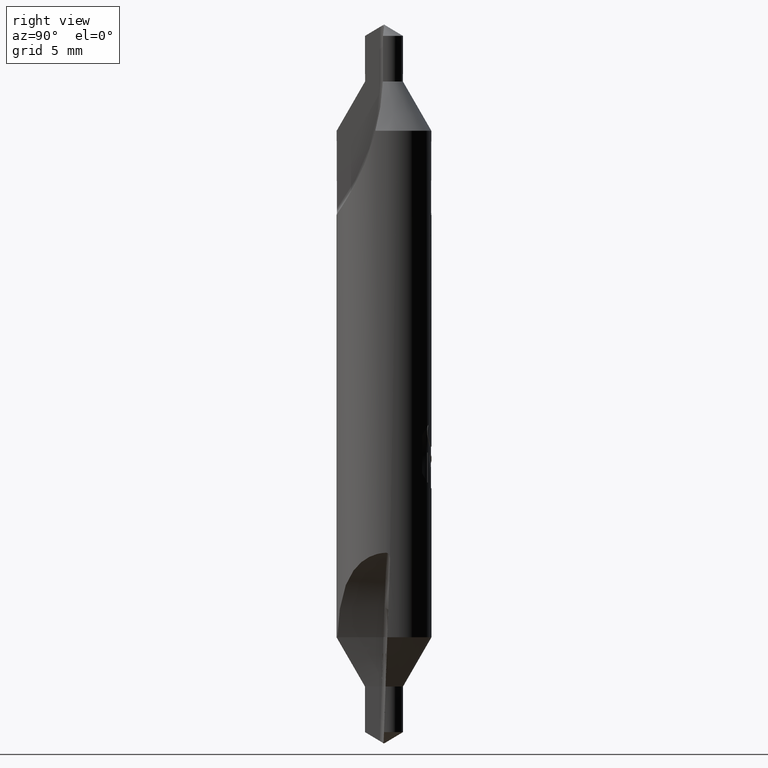
[diagram: clean part render]
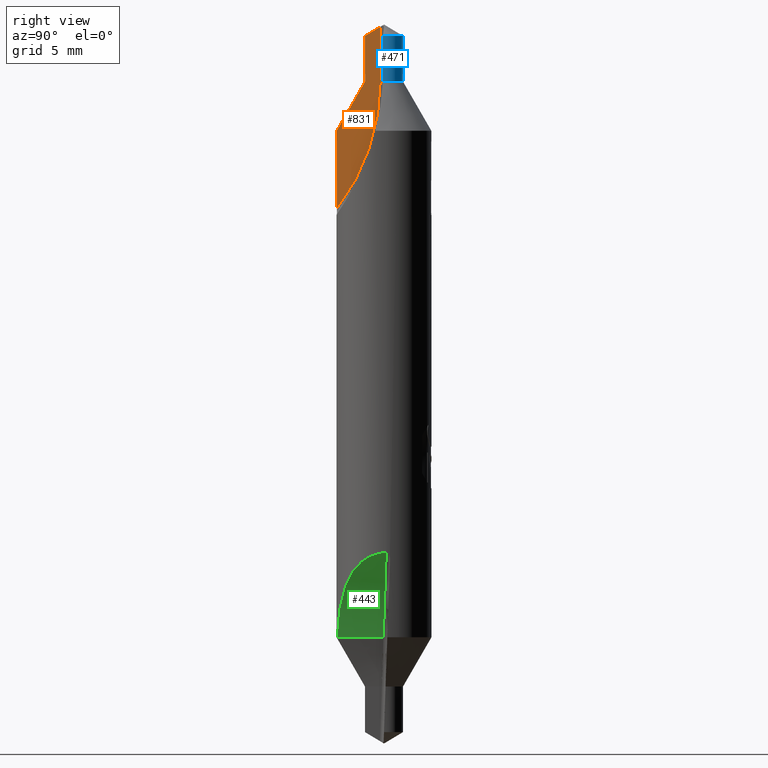
[diagram: same view with three faces highlighted in distinct colors, each labeled with its STEP entity id]
A machine part, right view with three faces highlighted in distinct colors.
Their STEP definitions:

[orange] entity #831 — the highlighted planar face has unit normal (-0.9994, 0, 0.0349).
#449=EDGE_CURVE('',#1061,#845,#1202,.T.);
#651=EDGE_CURVE('',#867,#845,#1425,.T.);
#659=EDGE_CURVE('',#867,#1121,#1433,.T.);
#669=EDGE_CURVE('',#1011,#1061,#1443,.T.);
#687=EDGE_CURVE('',#1107,#1011,#1462,.T.);
#735=EDGE_CURVE('',#1121,#1107,#1514,.T.);
#831=ADVANCED_FACE('',(#1619),#1620,.F.);
#845=VERTEX_POINT('',#1635);
#867=VERTEX_POINT('',#1660);
#1011=VERTEX_POINT('',#1816);
#1061=VERTEX_POINT('',#1871);
#1107=VERTEX_POINT('',#1921);
#1121=VERTEX_POINT('',#1935);
#1202=(B_SPLINE_CURVE(2,(#2066,#2067,#2068,#2069,#2070,#2071,#2072,#2073,#2074,#2075,#2076),.UNSPECIFIED.,.F.,.F.)B_SPLINE_CURVE_WITH_KNOTS((3,1,1,1,1,1,1,1,1,3),(0.0,0.0174878699001051,0.0443849076843532,0.122888182478185,0.355189575203595,0.904908470016395,1.43707627342332,1.71101925978727,1.8186462032572,1.85680597519199),.UNSPECIFIED.)RATIONAL_B_SPLINE_CURVE((1.0,1.4394437444751,2.53376056383047,5.05568976123685,11.8319628929197,23.9648514120051,24.652835124408,13.5543550155183,5.47172202280765,1.95889740506587,1.0))BOUNDED_CURVE()REPRESENTATION_ITEM('')GEOMETRIC_REPRESENTATION_ITEM()CURVE());
#1425=LINE('',#2700,#2701);
#1433=CIRCLE('',#2731,8.79692194);
#1443=ELLIPSE('',#2755,22.9229666782752,0.8);
#1462=(B_SPLINE_CURVE(2,(#2796,#2797,#2798),.UNSPECIFIED.,.F.,.F.)B_SPLINE_CURVE_WITH_KNOTS((3,3),(0.0,2.40006550699986),.UNSPECIFIED.)RATIONAL_B_SPLINE_CURVE((1.0,1.1070260432372,1.0))BOUNDED_CURVE()REPRESENTATION_ITEM('')GEOMETRIC_REPRESENTATION_ITEM()CURVE());
#1514=ELLIPSE('',#2992,57.3074166956881,2.0);
#1619=FACE_OUTER_BOUND('',#3243,.T.);
#1620=PLANE('',#3244);
#1635=CARTESIAN_POINT('',(0.0134170267688776,-0.16,-0.0964751249774476));
#1660=CARTESIAN_POINT('',(-0.0669830053653219,-0.16,-2.39883080912696));
#1816=CARTESIAN_POINT('',(-0.0670238344743604,-0.797187434429541,-2.40000000183469));
#1871=CARTESIAN_POINT('',(-3.60822483003176E-016,-0.8,-0.480688501834695));
#1921=CARTESIAN_POINT('',(-0.139605290905324,-1.9951216410914,-4.4784609718347));
#1935=CARTESIAN_POINT('',(-0.254147216168673,-1.98378657937635,-7.75851255518874));
#2066=CARTESIAN_POINT('',(-3.60822483003176E-016,-0.8,-0.480688501834695));
#2067=CARTESIAN_POINT('',(0.00523438519587872,-0.550535858046051,-0.330795321585157));
#2068=CARTESIAN_POINT('',(0.0103788463742728,-0.30521521511412,-0.183477228276537));
#2069=CARTESIAN_POINT('',(0.013754392061618,-0.143982495128848,-0.0868142470056642));
#2070=CARTESIAN_POINT('',(0.0156966673156799,-0.0502048099169644,-0.0311947608852086));
#2071=CARTESIAN_POINT('',(0.0164303187258985,-0.0107277966043857,-0.0101857332808212));
#2072=CARTESIAN_POINT('',(0.016450284843921,0.00847926831940585,-0.00961397846805053));
#2073=CARTESIAN_POINT('',(0.0158808095736354,0.041045754630396,-0.025921616546307));
#2074=CARTESIAN_POINT('',(0.0140122494957368,0.131722177009908,-0.0794301762113569));
#2075=CARTESIAN_POINT('',(0.00839300615291653,0.400000000000001,-0.240344251834696));
#2076=CARTESIAN_POINT('',(-3.60822483003176E-016,0.8,-0.480688501834695));
#2700=CARTESIAN_POINT('',(-0.0669830053653219,-0.16,-2.39883080912696));
#2701=VECTOR('',#4378,1.0);
#2731=AXIS2_PLACEMENT_3D('',#4382,#4383,#4384);
#2755=AXIS2_PLACEMENT_3D('',#4388,#4389,#4390);
#2796=CARTESIAN_POINT('',(-0.139605290905324,-1.9951216410914,-4.4784609718347));
#2797=CARTESIAN_POINT('',(-0.0877454041986311,-1.1392467560555,-2.99338812087851));
#2798=CARTESIAN_POINT('',(-0.0670238344743604,-0.797187434429541,-2.4000000018347));
#2992=AXIS2_PLACEMENT_3D('',#4444,#4445,#4446);
#3243=EDGE_LOOP('',(#4559,#4560,#4561,#4562,#4563,#4564));
#3244=AXIS2_PLACEMENT_3D('',#4565,#4566,#4567);
#4378=DIRECTION('',(0.0348994967025007,0.0,0.999390827019096));
#4382=CARTESIAN_POINT('',(-0.0669830053653229,-8.95692194,-2.39883080912696));
#4383=DIRECTION('',(-0.999390827019096,0.0,0.0348994967025007));
#4384=DIRECTION('',(0.0348994967025007,0.0,0.999390827019096));
#4388=CARTESIAN_POINT('',(0.0,0.0,-0.480688501834685));
#4389=DIRECTION('',(-0.999390827019096,0.0,0.0348994967025007));
#4390=DIRECTION('',(0.0348994967025007,-0.0,0.999390827019096));
#4444=CARTESIAN_POINT('',(0.0,0.0,-0.480688501834685));
#4445=DIRECTION('',(-0.999390827019096,0.0,0.0348994967025007));
#4446=DIRECTION('',(0.0348994967025007,-0.0,0.999390827019096));
#4559=ORIENTED_EDGE('',*,*,#735,.F.);
#4560=ORIENTED_EDGE('',*,*,#659,.F.);
#4561=ORIENTED_EDGE('',*,*,#651,.T.);
#4562=ORIENTED_EDGE('',*,*,#449,.F.);
#4563=ORIENTED_EDGE('',*,*,#669,.F.);
#4564=ORIENTED_EDGE('',*,*,#687,.F.);
#4565=CARTESIAN_POINT('',(0.0865210687532709,-8.95692194,1.99695073729256));
#4566=DIRECTION('',(-0.999390827019096,0.0,0.0348994967025007));
#4567=DIRECTION('',(0.0348994967025007,0.0,0.999390827019096));

[blue] entity #471 — the highlighted cylindrical surface (edge-blend (fillet) strip) has radius 0.8 mm, axis along (-0, -0, 1).
#471=ADVANCED_FACE('',(#1228),#1229,.T.);
#473=VERTEX_POINT('',#1231);
#565=VERTEX_POINT('',#1333);
#727=VERTEX_POINT('',#1505);
#805=EDGE_CURVE('',#473,#815,#1592,.T.);
#815=VERTEX_POINT('',#1603);
#849=EDGE_CURVE('',#565,#727,#1640,.T.);
#889=EDGE_CURVE('',#815,#727,#1685,.T.);
#1031=EDGE_CURVE('',#565,#473,#1839,.T.);
#1228=FACE_OUTER_BOUND('',#2146,.T.);
#1229=CYLINDRICAL_SURFACE('',#2147,0.8);
#1231=CARTESIAN_POINT('',(0.0,0.8,-0.480688501834695));
#1333=CARTESIAN_POINT('',(0.0670238344743623,0.797187434429541,-2.40000000183469));
#1505=CARTESIAN_POINT('',(0.798503622795996,-0.0489077129057376,-2.40000000183469));
#1592=CIRCLE('',#3202,0.8);
#1603=CARTESIAN_POINT('',(0.798775671363862,-0.0442428167865947,-0.480688501834695));
#1640=CIRCLE('',#3278,0.8);
#1685=(B_SPLINE_CURVE(2,(#3409,#3410,#3411),.UNSPECIFIED.,.F.,.F.)B_SPLINE_CURVE_WITH_KNOTS((3,3),(0.0,1.91931718831074),.UNSPECIFIED.)RATIONAL_B_SPLINE_CURVE((1.0,0.999995735362218,1.0))BOUNDED_CURVE()REPRESENTATION_ITEM('')GEOMETRIC_REPRESENTATION_ITEM()CURVE());
#1839=ELLIPSE('',#3747,22.9229666782752,0.8);
#2146=EDGE_LOOP('',(#4150,#4151,#4152,#4153));
#2147=AXIS2_PLACEMENT_3D('',#4154,#4155,#4156);
#3202=AXIS2_PLACEMENT_3D('',#4536,#4537,#4538);
#3278=AXIS2_PLACEMENT_3D('',#4593,#4594,#4595);
#3409=CARTESIAN_POINT('',(0.798775671363862,-0.0442428167865947,-0.480688501834695));
#3410=CARTESIAN_POINT('',(0.798646458974345,-0.0465756635042027,-1.44031254165637));
#3411=CARTESIAN_POINT('',(0.798503622795996,-0.0489077129057376,-2.40000000183469));
#3747=AXIS2_PLACEMENT_3D('',#4832,#4833,#4834);
#4150=ORIENTED_EDGE('',*,*,#889,.T.);
#4151=ORIENTED_EDGE('',*,*,#849,.F.);
#4152=ORIENTED_EDGE('',*,*,#1031,.T.);
#4153=ORIENTED_EDGE('',*,*,#805,.T.);
#4154=CARTESIAN_POINT('',(0.0,0.0,-1.44034425183469));
#4155=DIRECTION('',(-0.0,-0.0,1.0));
#4156=DIRECTION('',(0.0,1.0,0.0));
#4536=CARTESIAN_POINT('',(0.0,0.0,-0.480688501834695));
#4537=DIRECTION('',(0.0,0.0,-1.0));
#4538=DIRECTION('',(0.0,1.0,0.0));
#4593=CARTESIAN_POINT('',(0.0,0.0,-2.40000000183469));
#4594=DIRECTION('',(0.0,0.0,-1.0));
#4595=DIRECTION('',(0.0,1.0,0.0));
#4832=CARTESIAN_POINT('',(0.0,0.0,-0.48068850183463));
#4833=DIRECTION('',(0.999390827019096,0.0,0.0348994967025007));
#4834=DIRECTION('',(0.0348994967025007,0.0,-0.999390827019096));

[green] entity #443 — the highlighted conical surface has half-angle 4 deg.
#443=ADVANCED_FACE('',(#1195),#1196,.F.);
#919=EDGE_CURVE('',#1049,#1111,#1716,.T.);
#933=EDGE_CURVE('',#1059,#1049,#1732,.T.);
#939=EDGE_CURVE('',#1059,#1111,#1739,.T.);
#1049=VERTEX_POINT('',#1857);
#1059=VERTEX_POINT('',#1869);
#1111=VERTEX_POINT('',#1925);
#1195=FACE_OUTER_BOUND('',#2047,.T.);
#1196=CONICAL_SURFACE('',#2048,8.64935206272734,0.0698131700797732);
#1716=B_SPLINE_CURVE_WITH_KNOTS('',3,(#3510,#3511,#3512,#3513,#3514,#3515,#3516,#3517,#3518,#3519,#3520,#3521,#3522,#3523,#3524,#3525,#3526,#3527,#3528,#3529,#3530,#3531,#3532,#3533),.UNSPECIFIED.,.F.,.F.,(4,2,2,2,2,2,2,2,2,2,2,4),(9.30180473098247,10.1708844544966,11.0399641780108,11.6940415872628,12.3481189965147,12.6685788564057,12.9890387162966,13.275393114549,13.5617475128013,13.8481019110537,14.134456309306,14.4223159109278),.UNSPECIFIED.);
#1732=(B_SPLINE_CURVE(2,(#3571,#3572,#3573),.UNSPECIFIED.,.F.,.F.)B_SPLINE_CURVE_WITH_KNOTS((3,3),(0.0,2.21296189911165),.UNSPECIFIED.)RATIONAL_B_SPLINE_CURVE((1.0,1.00002981726071,1.0))BOUNDED_CURVE()REPRESENTATION_ITEM('')GEOMETRIC_REPRESENTATION_ITEM()CURVE());
#1739=CIRCLE('',#3587,8.95653218794182);
#1857=CARTESIAN_POINT('',(0.367014517809569,-1.96603670965651,-25.8215390347779));
#1869=CARTESIAN_POINT('',(0.244047967375367,-0.0316600751203061,-25.8215390347779));
#1925=CARTESIAN_POINT('',(1.9978504666747,0.0927012017595372,-22.2602980114599));
#2047=EDGE_LOOP('',(#4108,#4109,#4110));
#2048=AXIS2_PLACEMENT_3D('',#4111,#4112,#4113);
#3510=CARTESIAN_POINT('',(0.322248986833603,-1.97386817961198,-26.0238932085949));
#3511=CARTESIAN_POINT('',(0.386637150342106,-1.96335641364115,-25.7161203701461));
#3512=CARTESIAN_POINT('',(0.467288533138022,-1.94707092815768,-25.4122198444315));
#3513=CARTESIAN_POINT('',(0.65385617138174,-1.89259501454194,-24.8279808630606));
#3514=CARTESIAN_POINT('',(0.759750910720949,-1.85426242163428,-24.547648801235));
#3515=CARTESIAN_POINT('',(0.956193167883763,-1.75911345147841,-24.0892431501151));
#3516=CARTESIAN_POINT('',(1.05521396676653,-1.7037211909737,-23.8782064824002));
#3517=CARTESIAN_POINT('',(1.26232484328689,-1.55649565210555,-23.4753392418452));
#3518=CARTESIAN_POINT('',(1.37016627325817,-1.46399466817588,-23.2836251738446));
#3519=CARTESIAN_POINT('',(1.51555635103273,-1.30692099018019,-23.0392599750041));
#3520=CARTESIAN_POINT('',(1.56763565648275,-1.2449150901556,-22.9542631975507));
#3521=CARTESIAN_POINT('',(1.66806470450702,-1.10673181656546,-22.7944925507627));
#3522=CARTESIAN_POINT('',(1.7163015336783,-1.03040807959619,-22.7197743518944));
#3523=CARTESIAN_POINT('',(1.79422076636279,-0.886964434481924,-22.6003329815379));
#3524=CARTESIAN_POINT('',(1.83008395575304,-0.811488594806469,-22.5459893534975));
#3525=CARTESIAN_POINT('',(1.89420012336617,-0.647863349728903,-22.4484296845118));
#3526=CARTESIAN_POINT('',(1.92242310034594,-0.559699259275756,-22.4052185591769));
#3527=CARTESIAN_POINT('',(1.96671927070333,-0.375486079425089,-22.3346629752158));
#3528=CARTESIAN_POINT('',(1.98281030928744,-0.279247722889503,-22.3072513760985));
#3529=CARTESIAN_POINT('',(2.00057445543816,-0.0849580103877959,-22.2703904060693));
#3530=CARTESIAN_POINT('',(2.00223343848672,0.0130954283047075,-22.2609452075279));
#3531=CARTESIAN_POINT('',(1.9918594778997,0.204210869322813,-22.2592086730744));
#3532=CARTESIAN_POINT('',(1.97948603881439,0.302148523569141,-22.2669656156057));
#3533=CARTESIAN_POINT('',(1.95990611336734,0.398457057642753,-22.2838835060865));
#3571=CARTESIAN_POINT('',(0.228792138237711,0.208504701810544,-25.8215390318347));
#3572=CARTESIAN_POINT('',(0.299499856802049,-0.904700015280051,-25.8215390318347));
#3573=CARTESIAN_POINT('',(0.369174994127071,-2.0,-25.8215390318347));
#3587=AXIS2_PLACEMENT_3D('',#4700,#4701,#4702);
#4108=ORIENTED_EDGE('',*,*,#919,.F.);
#4109=ORIENTED_EDGE('',*,*,#933,.F.);
#4110=ORIENTED_EDGE('',*,*,#939,.T.);
#4111=CARTESIAN_POINT('',(8.95692194,-4.49427819177257,-27.7418864466288));
#4112=DIRECTION('',(0.0,0.999390827019096,-0.0348994967025007));
#4113=DIRECTION('',(0.0,-0.0348994967025007,-0.999390827019096));
#4700=CARTESIAN_POINT('',(8.95692194,-0.104073763748373,-27.8951957634815));
#4701=DIRECTION('',(0.0,0.999390827019096,-0.0348994967025007));
#4702=DIRECTION('',(0.0,-0.0348994967025007,-0.999390827019096));